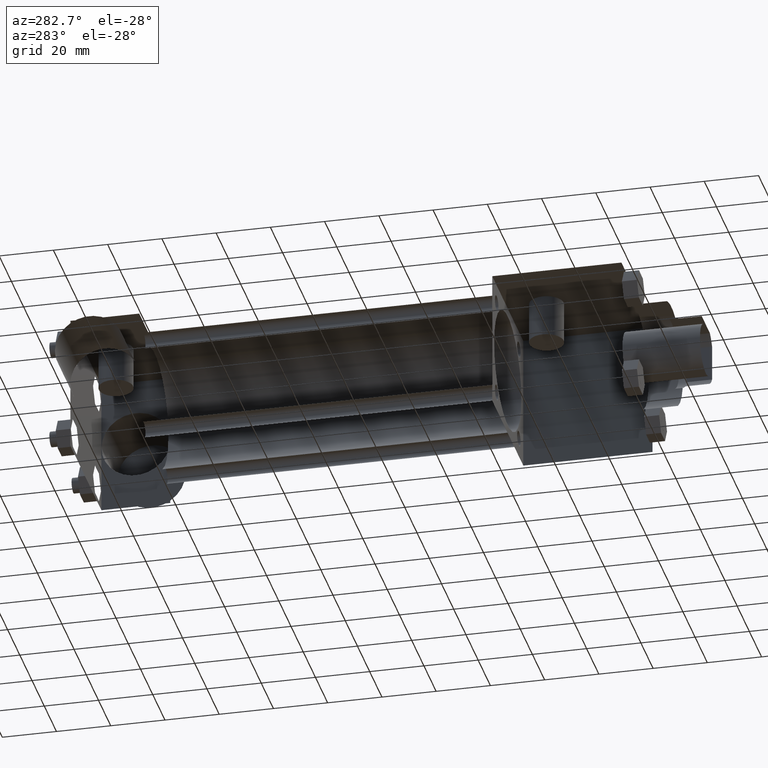
[diagram: clean part render]
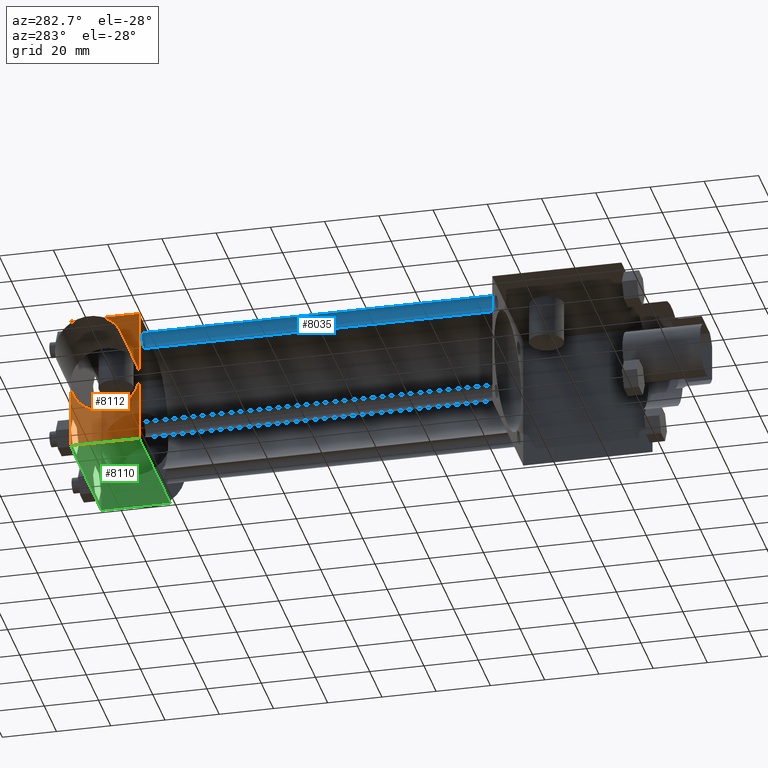
[diagram: same view with three faces highlighted in distinct colors, each labeled with its STEP entity id]
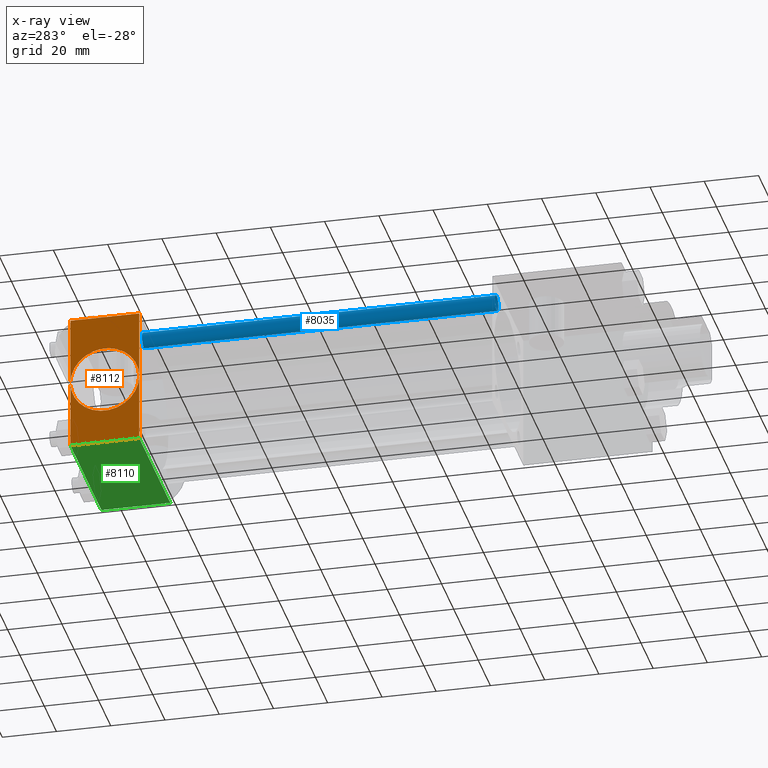
[diagram: x-ray of the same camera — body ghosted, the three highlighted faces saturated]
A machine part, auxiliary view with three faces highlighted in distinct colors.
The next image is the same camera in x-ray (body ghosted, the three faces saturated) — at least one of them is partly hidden behind the body in this view.
Their STEP definitions:

[orange] entity #8112 — the highlighted planar face has unit normal (-1, 0, 0).
#4439=VERTEX_POINT('',#4441);
#4441=CARTESIAN_POINT('',(-2.540000000E+001,2.286000000E+002,-2.540000000E+001));
#4443=EDGE_CURVE('',#4448,#4439,#4444,.T.);
#4444=LINE('',#4445,#4446);
#4445=CARTESIAN_POINT('',(-2.540000000E+001,2.286000000E+002,2.540000000E+001));
#4446=VECTOR('',#4447,1.0E+000);
#4447=DIRECTION('',(0.0E+000,0.0E+000,-1.0E+000));
#4448=VERTEX_POINT('',#4449);
#4449=CARTESIAN_POINT('',(-2.540000000E+001,2.286000000E+002,2.540000000E+001));
#4612=VERTEX_POINT('',#4614);
#4614=CARTESIAN_POINT('',(-2.540000000E+001,2.032000000E+002,-2.540000000E+001));
#4628=VERTEX_POINT('',#4629);
#4629=CARTESIAN_POINT('',(-2.540000000E+001,2.032000000E+002,2.540000000E+001));
#4630=EDGE_CURVE('',#4628,#4612,#4631,.T.);
#4631=LINE('',#4632,#4633);
#4632=CARTESIAN_POINT('',(-2.540000000E+001,2.032000000E+002,2.540000000E+001));
#4633=VECTOR('',#4634,1.0E+000);
#4634=DIRECTION('',(0.0E+000,0.0E+000,-1.0E+000));
#4657=EDGE_CURVE('',#4439,#4612,#4658,.T.);
#4658=LINE('',#4659,#4660);
#4659=CARTESIAN_POINT('',(-2.540000000E+001,2.286000000E+002,-2.540000000E+001));
#4660=VECTOR('',#4661,1.0E+000);
#4661=DIRECTION('',(0.0E+000,-1.0E+000,0.0E+000));
#4694=EDGE_CURVE('',#4448,#4628,#4695,.T.);
#4695=LINE('',#4696,#4697);
#4696=CARTESIAN_POINT('',(-2.540000000E+001,2.286000000E+002,2.540000000E+001));
#4697=VECTOR('',#4698,1.0E+000);
#4698=DIRECTION('',(0.0E+000,-1.0E+000,0.0E+000));
#4713=FACE_OUTER_BOUND('',#4715,.T.);
#4714=FACE_BOUND('',#4716,.T.);
#4715=EDGE_LOOP('',(#4717,#4718,#4719,#4720));
#4716=EDGE_LOOP('',(#4721));
#4717=ORIENTED_EDGE('',*,*,#4630,.F.);
#4718=ORIENTED_EDGE('',*,*,#4694,.F.);
#4719=ORIENTED_EDGE('',*,*,#4443,.T.);
#4720=ORIENTED_EDGE('',*,*,#4657,.T.);
#4721=ORIENTED_EDGE('',*,*,#4722,.T.);
#4722=EDGE_CURVE('',#4728,#4728,#4723,.T.);
#4723=CIRCLE('',#4724,1.267460000E+001);
#4724=AXIS2_PLACEMENT_3D('',#4725,#4726,#4727);
#4725=CARTESIAN_POINT('',(-2.540000000E+001,2.159000000E+002,0.000000000E+000));
#4726=DIRECTION('',(1.0E+000,0.0E+000,0.0E+000));
#4727=DIRECTION('',(0.0E+000,-1.0E+000,0.0E+000));
#4728=VERTEX_POINT('',#4729);
#4729=CARTESIAN_POINT('',(-2.540000000E+001,2.032254000E+002,0.000000000E+000));
#4730=PLANE('',#4731);
#4731=AXIS2_PLACEMENT_3D('',#4732,#4733,#4734);
#4732=CARTESIAN_POINT('',(-2.540000000E+001,2.286000000E+002,2.540000000E+001));
#4733=DIRECTION('',(-1.0E+000,0.0E+000,0.0E+000));
#4734=DIRECTION('',(0.0E+000,0.0E+000,1.0E+000));
#8112=ADVANCED_FACE('',(#4713,#4714),#4730,.T.);

[blue] entity #8035 — the highlighted cylindrical surface (bore or boss wall) has radius 2.8575 mm, axis along (0, -1, 0).
#509=EDGE_CURVE('',#515,#515,#510,.T.);
#510=CIRCLE('',#511,2.857500000E+000);
#511=AXIS2_PLACEMENT_3D('',#512,#513,#514);
#512=CARTESIAN_POINT('',(-1.816100000E+001,7.302500000E+001,1.816100000E+001));
#513=DIRECTION('',(0.0E+000,1.0E+000,0.0E+000));
#514=DIRECTION('',(1.0E+000,0.0E+000,0.0E+000));
#515=VERTEX_POINT('',#516);
#516=CARTESIAN_POINT('',(-1.530350000E+001,7.302500000E+001,1.816100000E+001));
#2397=FACE_OUTER_BOUND('',#2399,.T.);
#2398=FACE_BOUND('',#2400,.T.);
#2399=EDGE_LOOP('',(#2401));
#2400=EDGE_LOOP('',(#2402));
#2401=ORIENTED_EDGE('',*,*,#2456,.F.);
#2402=ORIENTED_EDGE('',*,*,#509,.T.);
#2403=CYLINDRICAL_SURFACE('',#2404,2.857500000E+000);
#2404=AXIS2_PLACEMENT_3D('',#2405,#2406,#2407);
#2405=CARTESIAN_POINT('',(-1.816100000E+001,2.032000000E+002,1.816100000E+001));
#2406=DIRECTION('',(0.0E+000,-1.0E+000,0.0E+000));
#2407=DIRECTION('',(0.0E+000,0.0E+000,-1.0E+000));
#2456=EDGE_CURVE('',#2462,#2462,#2457,.T.);
#2457=CIRCLE('',#2458,2.857500000E+000);
#2458=AXIS2_PLACEMENT_3D('',#2459,#2460,#2461);
#2459=CARTESIAN_POINT('',(-1.816100000E+001,2.032000000E+002,1.816100000E+001));
#2460=DIRECTION('',(0.0E+000,1.0E+000,0.0E+000));
#2461=DIRECTION('',(1.0E+000,0.0E+000,0.0E+000));
#2462=VERTEX_POINT('',#2463);
#2463=CARTESIAN_POINT('',(-1.530350000E+001,2.032000000E+002,1.816100000E+001));
#8035=ADVANCED_FACE('',(#2397,#2398),#2403,.T.);

[green] entity #8110 — the highlighted planar face has unit normal (0, 0, -1).
#4434=EDGE_CURVE('',#4439,#4440,#4435,.T.);
#4435=LINE('',#4436,#4437);
#4436=CARTESIAN_POINT('',(-2.540000000E+001,2.286000000E+002,-2.540000000E+001));
#4437=VECTOR('',#4438,1.0E+000);
#4438=DIRECTION('',(1.0E+000,0.0E+000,0.0E+000));
#4439=VERTEX_POINT('',#4441);
#4440=VERTEX_POINT('',#4442);
#4441=CARTESIAN_POINT('',(-2.540000000E+001,2.286000000E+002,-2.540000000E+001));
#4442=CARTESIAN_POINT('',(2.540000000E+001,2.286000000E+002,-2.540000000E+001));
#4607=EDGE_CURVE('',#4612,#4613,#4608,.T.);
#4608=LINE('',#4609,#4610);
#4609=CARTESIAN_POINT('',(-2.540000000E+001,2.032000000E+002,-2.540000000E+001));
#4610=VECTOR('',#4611,1.0E+000);
#4611=DIRECTION('',(1.0E+000,0.0E+000,0.0E+000));
#4612=VERTEX_POINT('',#4614);
#4613=VERTEX_POINT('',#4615);
#4614=CARTESIAN_POINT('',(-2.540000000E+001,2.032000000E+002,-2.540000000E+001));
#4615=CARTESIAN_POINT('',(2.540000000E+001,2.032000000E+002,-2.540000000E+001));
#4649=FACE_OUTER_BOUND('',#4651,.T.);
#4650=FACE_BOUND('',#4652,.T.);
#4651=EDGE_LOOP('',(#4653,#4654,#4655,#4656));
#4652=EDGE_LOOP('',(#4667));
#4653=ORIENTED_EDGE('',*,*,#4607,.F.);
#4654=ORIENTED_EDGE('',*,*,#4657,.F.);
#4655=ORIENTED_EDGE('',*,*,#4434,.T.);
#4656=ORIENTED_EDGE('',*,*,#4662,.T.);
#4657=EDGE_CURVE('',#4439,#4612,#4658,.T.);
#4658=LINE('',#4659,#4660);
#4659=CARTESIAN_POINT('',(-2.540000000E+001,2.286000000E+002,-2.540000000E+001));
#4660=VECTOR('',#4661,1.0E+000);
#4661=DIRECTION('',(0.0E+000,-1.0E+000,0.0E+000));
#4662=EDGE_CURVE('',#4440,#4613,#4663,.T.);
#4663=LINE('',#4664,#4665);
#4664=CARTESIAN_POINT('',(2.540000000E+001,2.286000000E+002,-2.540000000E+001));
#4665=VECTOR('',#4666,1.0E+000);
#4666=DIRECTION('',(0.0E+000,-1.0E+000,0.0E+000));
#4667=ORIENTED_EDGE('',*,*,#4668,.T.);
#4668=EDGE_CURVE('',#4674,#4674,#4669,.T.);
#4669=CIRCLE('',#4670,2.778125000E+000);
#4670=AXIS2_PLACEMENT_3D('',#4671,#4672,#4673);
#4671=CARTESIAN_POINT('',(0.000000000E+000,2.174875000E+002,-2.540000000E+001));
#4672=DIRECTION('',(0.0E+000,0.0E+000,1.0E+000));
#4673=DIRECTION('',(1.0E+000,0.0E+000,0.0E+000));
#4674=VERTEX_POINT('',#4675);
#4675=CARTESIAN_POINT('',(2.778125000E+000,2.174875000E+002,-2.540000000E+001));
#4676=PLANE('',#4677);
#4677=AXIS2_PLACEMENT_3D('',#4678,#4679,#4680);
#4678=CARTESIAN_POINT('',(-2.540000000E+001,2.286000000E+002,-2.540000000E+001));
#4679=DIRECTION('',(0.0E+000,0.0E+000,-1.0E+000));
#4680=DIRECTION('',(-1.0E+000,0.0E+000,0.0E+000));
#8110=ADVANCED_FACE('',(#4649,#4650),#4676,.T.);